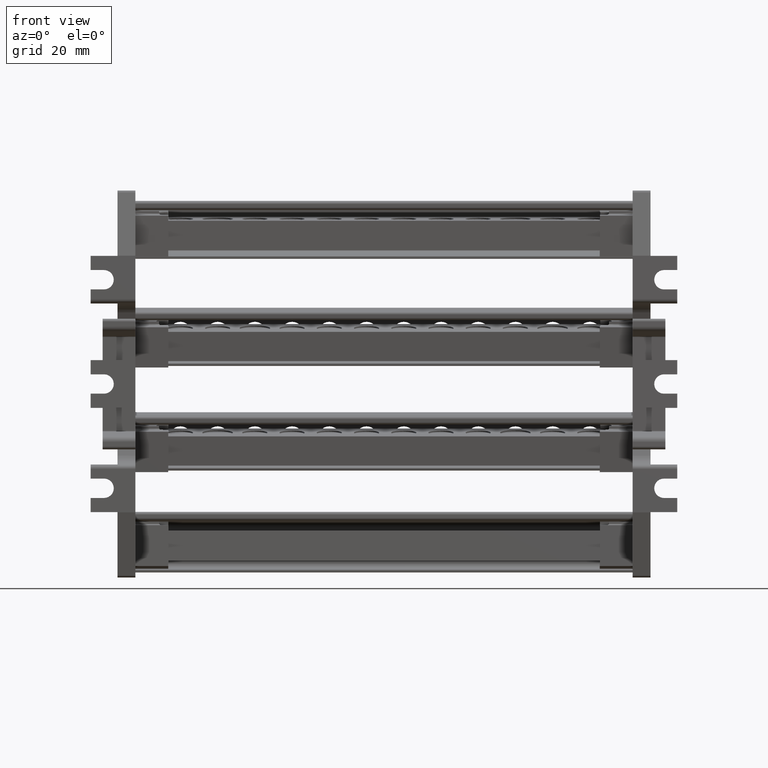
[diagram: clean part render]
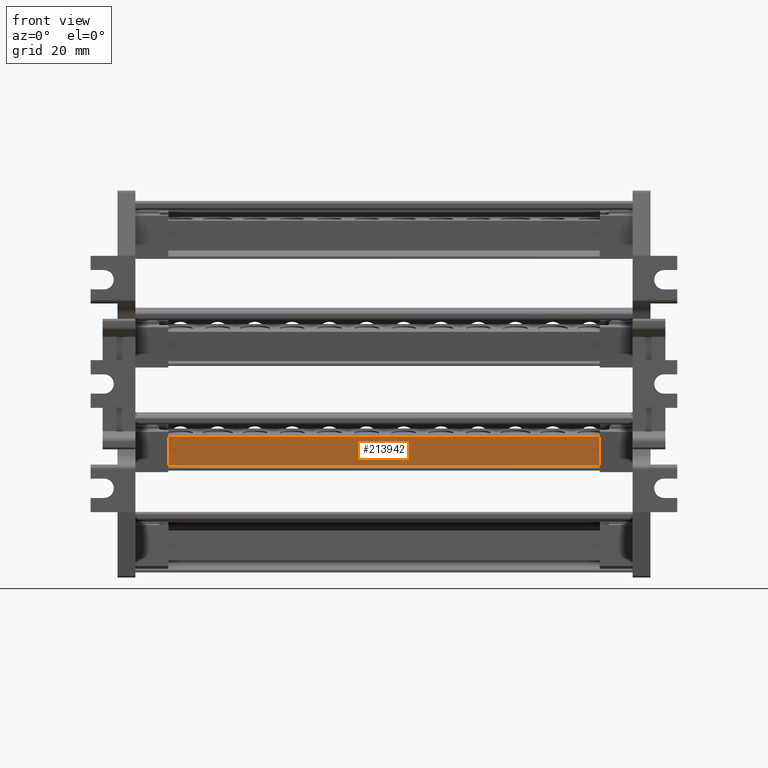
[diagram: same view with one face highlighted and labeled with its STEP entity id]
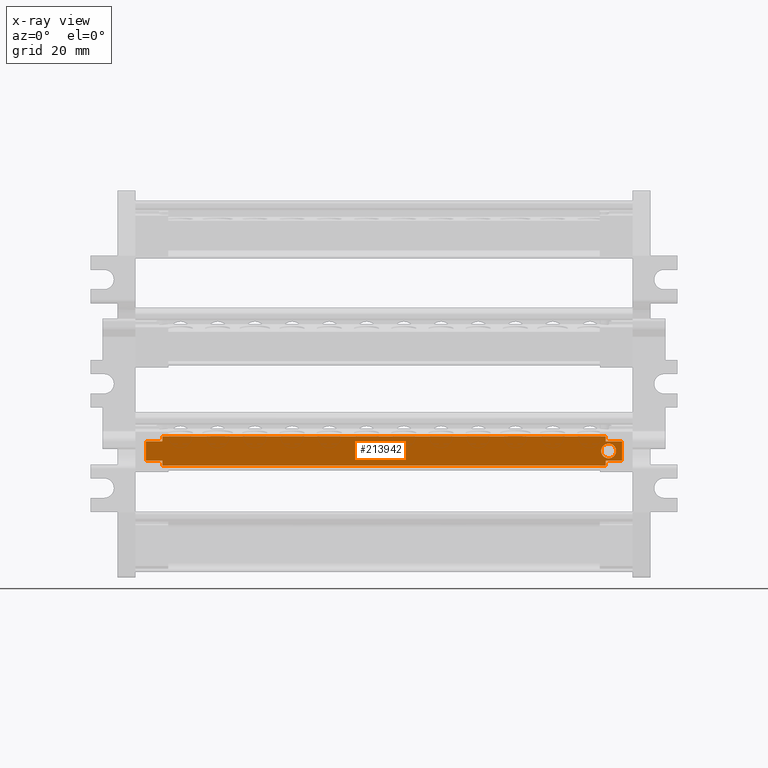
[diagram: x-ray of the same camera — body ghosted, the highlighted face saturated]
A machine part, front view. The second image highlights one B-rep face of the part: STEP entity #213942.
The next image is the same camera in x-ray: the body ghosted, the highlighted face saturated — about 0% of this face is hidden behind the body in this view.
In plain terms, the highlighted planar face has unit normal (-0, 0.9848, 0.1736).
Its self-contained STEP definition (entity closure, byte-faithful):
#4370 = LINE ( 'NONE', #4376, #158988 ) ;
#4376 = CARTESIAN_POINT ( 'NONE',  ( -1410.382428931376100, 714.2990447894144400, 2273.158254400498200 ) ) ;
#4488 = DIRECTION ( 'NONE',  ( -1.000000000000000000, -1.181062958423753300E-014, -2.082532654854678700E-015 ) ) ;
#4941 = LINE ( 'NONE', #4946, #158877 ) ;
#4946 = CARTESIAN_POINT ( 'NONE',  ( -1250.438428931344100, 712.8563735236994000, 2281.340049721443800 ) ) ;
#4952 = DIRECTION ( 'NONE',  ( -0.0000000000000000000, 0.1736481776669305000, -0.9848077530122081300 ) ) ;
#4961 = CARTESIAN_POINT ( 'NONE',  ( -1410.382428931376100, 713.1501840346495600, 2279.673767512267700 ) ) ;
#5029 = LINE ( 'NONE', #4961, #158990 ) ;
#5057 = DIRECTION ( 'NONE',  ( 1.000000000000000000, 1.181062958423753300E-014, 2.082532654854678700E-015 ) ) ;
#9163 = CARTESIAN_POINT ( 'NONE',  ( -1254.328059220478300, 713.3017929610317700, 2278.813950564395300 ) ) ;
#9164 = CARTESIAN_POINT ( 'NONE',  ( -1254.655179696627300, 713.2904939678666100, 2278.878030338913500 ) ) ;
#9165 = CARTESIAN_POINT ( 'NONE',  ( -1252.482428931376300, 713.7814406452910100, 2276.093733372833900 ) ) ;
#9166 = CARTESIAN_POINT ( 'NONE',  ( -1254.982428931376300, 713.2904939678666100, 2278.878030338913000 ) ) ;
#9187 = CARTESIAN_POINT ( 'NONE',  ( -1253.723381480448800, 714.1039429470533800, 2274.264731932061700 ) ) ;
#9189 = CARTESIAN_POINT ( 'NONE',  ( -1253.446062131439000, 714.0717661368415700, 2274.447215690831400 ) ) ;
#9195 = CARTESIAN_POINT ( 'NONE',  ( -1252.983261825380200, 713.9914017070710800, 2274.902985020333700 ) ) ;
#9197 = CARTESIAN_POINT ( 'NONE',  ( -1254.982428931376300, 714.1587348562012500, 2273.953991573851500 ) ) ;
#9198 = CARTESIAN_POINT ( 'NONE',  ( -1252.482428931376000, 713.6677881787768500, 2276.738288539930200 ) ) ;
#9201 = CARTESIAN_POINT ( 'NONE',  ( -1252.547497239705100, 713.8382445198517400, 2275.771582591753500 ) ) ;
#9202 = CARTESIAN_POINT ( 'NONE',  ( -1252.547497239705300, 713.6109843042160000, 2277.060439321011000 ) ) ;
#9207 = CARTESIAN_POINT ( 'NONE',  ( -1254.655179696627300, 714.1587348562011400, 2273.953991573851500 ) ) ;
#9210 = CARTESIAN_POINT ( 'NONE',  ( -1254.328059220478700, 714.1474358630357500, 2274.018071348369200 ) ) ;
#9213 = CARTESIAN_POINT ( 'NONE',  ( -1252.797962960490400, 713.9432457074835800, 2275.176091265299000 ) ) ;
#9214 = CARTESIAN_POINT ( 'NONE',  ( -1252.797962960490400, 713.5059831165842800, 2277.655930647466000 ) ) ;
#9215 = CARTESIAN_POINT ( 'NONE',  ( -1252.983261825380600, 713.4578271169967800, 2277.929036892430800 ) ) ;
#9216 = CARTESIAN_POINT ( 'NONE',  ( -1253.446062131439000, 713.3774626872261700, 2278.384806221934000 ) ) ;
#9217 = CARTESIAN_POINT ( 'NONE',  ( -1253.723381480449000, 713.3452858770141300, 2278.567289980702300 ) ) ;
#11740 = LINE ( 'NONE', #11760, #159340 ) ;
#11745 = DIRECTION ( 'NONE',  ( -0.0000000000000000000, -0.1736481776669314100, 0.9848077530122079100 ) ) ;
#11748 = DIRECTION ( 'NONE',  ( 0.0000000000000000000, -0.1736481776669305000, 0.9848077530122081300 ) ) ;
#11760 = CARTESIAN_POINT ( 'NONE',  ( -1255.938428931344300, 714.6145613225754700, 2271.368871222194200 ) ) ;
#11811 = LINE ( 'NONE', #11813, #159316 ) ;
#11813 = CARTESIAN_POINT ( 'NONE',  ( -1404.882428931376100, 712.8563735236975800, 2281.340049721443400 ) ) ;
#11894 = CARTESIAN_POINT ( 'NONE',  ( -1410.382428931376400, 714.5928553003672100, 2271.491972191321600 ) ) ;
#11954 = LINE ( 'NONE', #11894, #159396 ) ;
#11982 = DIRECTION ( 'NONE',  ( -1.000000000000000000, -1.514491706019197600E-016, 8.589109278308477900E-016 ) ) ;
#12350 = DIRECTION ( 'NONE',  ( -1.000000000000000000, -1.216784883144208100E-014, -3.703815455732279800E-016 ) ) ;
#12365 = CARTESIAN_POINT ( 'NONE',  ( -1404.882428931379500, 712.8563735236975800, 2281.340049721443400 ) ) ;
#12388 = LINE ( 'NONE', #12365, #159366 ) ;
#12394 = LINE ( 'NONE', #12407, #159301 ) ;
#12407 = CARTESIAN_POINT ( 'NONE',  ( -1385.382428931378400, 714.2990447894147800, 2273.158254400495000 ) ) ;
#12448 = DIRECTION ( 'NONE',  ( 0.0000000000000000000, -0.1736481776669305000, 0.9848077530122081300 ) ) ;
#13782 = LINE ( 'NONE', #13787, #159147 ) ;
#13784 = CARTESIAN_POINT ( 'NONE',  ( -1385.382428931378400, 713.1501840346488700, 2279.673767512269900 ) ) ;
#13787 = CARTESIAN_POINT ( 'NONE',  ( -1410.382428931376400, 712.8563735236994000, 2281.340049721443800 ) ) ;
#13827 = DIRECTION ( 'NONE',  ( -1.000000000000000000, -1.514491706019197600E-016, 8.589109278308477900E-016 ) ) ;
#13833 = LINE ( 'NONE', #13784, #159233 ) ;
#13837 = DIRECTION ( 'NONE',  ( 1.000000000000000000, 1.216784883144208100E-014, 3.703815455732279800E-016 ) ) ;
#13896 = CARTESIAN_POINT ( 'NONE',  ( -1255.938428931344300, 714.6145613225754700, 2271.368871222194200 ) ) ;
#13900 = DIRECTION ( 'NONE',  ( -0.0000000000000000000, -0.1736481776669314100, 0.9848077530122079100 ) ) ;
#13908 = LINE ( 'NONE', #13896, #159209 ) ;
#14101 = LINE ( 'NONE', #14105, #159335 ) ;
#14105 = CARTESIAN_POINT ( 'NONE',  ( -1410.382428931375900, 713.1501840346488700, 2279.673767512269900 ) ) ;
#14124 = DIRECTION ( 'NONE',  ( 0.0000000000000000000, 0.1736481776668329600, -0.9848077530122252300 ) ) ;
#29404 = AXIS2_PLACEMENT_3D ( 'NONE', #59130, #59128, #59126 ) ;
#30968 = B_SPLINE_CURVE_WITH_KNOTS ( 'NONE', 3,
 ( #206337, #206296, #206313, #206298, #206291, #206316, #206329, #206300, #206344, #206301, #206342, #206302, #206305, #206318, #206328, #206307, #206341, #206320 ),
 .UNSPECIFIED., .F., .F.,
 ( 4, 2, 2, 2, 2, 2, 2, 2, 4 ),
 ( 0.0000000000000000000, 0.1250000000000000000, 0.2500000000000000000, 0.3750000000000000000, 0.5000000000000000000, 0.6250000000000000000, 0.7500000000000000000, 0.8750000000000000000, 1.000000000000000000 ),
 .UNSPECIFIED. ) ;
#59126 = DIRECTION ( 'NONE',  ( 0.0000000000000000000, -0.1736481776669305000, 0.9848077530122081300 ) ) ;
#59128 = DIRECTION ( 'NONE',  ( -1.199282758295986500E-014, 0.9848077530122081300, 0.1736481776669305000 ) ) ;
#59130 = CARTESIAN_POINT ( 'NONE',  ( -1410.382428931376100, 712.8563735236974700, 2281.340049721443400 ) ) ;
#59136 = FACE_BOUND ( 'NONE', #134306, .T. ) ;
#59151 = FACE_OUTER_BOUND ( 'NONE', #134545, .T. ) ;
#59170 = PLANE ( 'NONE',  #29404 ) ;
#105721 = ORIENTED_EDGE ( 'NONE', *, *, #210615, .F. ) ;
#105763 = ORIENTED_EDGE ( 'NONE', *, *, #210648, .T. ) ;
#105766 = ORIENTED_EDGE ( 'NONE', *, *, #210725, .T. ) ;
#105823 = ORIENTED_EDGE ( 'NONE', *, *, #210201, .F. ) ;
#105856 = ORIENTED_EDGE ( 'NONE', *, *, #210610, .T. ) ;
#105865 = ORIENTED_EDGE ( 'NONE', *, *, #210733, .F. ) ;
#105901 = ORIENTED_EDGE ( 'NONE', *, *, #210224, .F. ) ;
#105919 = ORIENTED_EDGE ( 'NONE', *, *, #210853, .F. ) ;
#105932 = ORIENTED_EDGE ( 'NONE', *, *, #210131, .F. ) ;
#105986 = ORIENTED_EDGE ( 'NONE', *, *, #210712, .T. ) ;
#106004 = ORIENTED_EDGE ( 'NONE', *, *, #210857, .F. ) ;
#106018 = ORIENTED_EDGE ( 'NONE', *, *, #210762, .F. ) ;
#106084 = ORIENTED_EDGE ( 'NONE', *, *, #128323, .F. ) ;
#106128 = ORIENTED_EDGE ( 'NONE', *, *, #140151, .F. ) ;
#114169 = VERTEX_POINT ( 'NONE', #172633 ) ;
#114325 = VERTEX_POINT ( 'NONE', #172842 ) ;
#114419 = VERTEX_POINT ( 'NONE', #172928 ) ;
#114443 = VERTEX_POINT ( 'NONE', #173000 ) ;
#114472 = VERTEX_POINT ( 'NONE', #173044 ) ;
#114480 = VERTEX_POINT ( 'NONE', #173052 ) ;
#114745 = VERTEX_POINT ( 'NONE', #173453 ) ;
#114751 = VERTEX_POINT ( 'NONE', #173386 ) ;
#114768 = VERTEX_POINT ( 'NONE', #173396 ) ;
#114780 = VERTEX_POINT ( 'NONE', #173392 ) ;
#114802 = VERTEX_POINT ( 'NONE', #173442 ) ;
#114809 = VERTEX_POINT ( 'NONE', #173367 ) ;
#128323 = EDGE_CURVE ( 'NONE', #139902, #139936, #129435, .T. ) ;
#129435 = B_SPLINE_CURVE_WITH_KNOTS ( 'NONE', 3,
 ( #9197, #9207, #9210, #9187, #9189, #9195, #9213, #9201, #9165, #9198, #9202, #9214, #9215, #9216, #9217, #9163, #9164, #9166 ),
 .UNSPECIFIED., .F., .F.,
 ( 4, 2, 2, 2, 2, 2, 2, 2, 4 ),
 ( 0.0000000000000000000, 0.1250000000000000000, 0.2500000000000000000, 0.3750000000000000000, 0.5000000000000000000, 0.6250000000000000000, 0.7500000000000000000, 0.8750000000000000000, 1.000000000000000000 ),
 .UNSPECIFIED. ) ;
#134306 = EDGE_LOOP ( 'NONE', ( #106128, #106084 ) ) ;
#134545 = EDGE_LOOP ( 'NONE', ( #105721, #105986, #106004, #105919, #106018, #105766, #105932, #105901, #105823, #105763, #105856, #105865 ) ) ;
#139902 = VERTEX_POINT ( 'NONE', #203605 ) ;
#139936 = VERTEX_POINT ( 'NONE', #203908 ) ;
#140151 = EDGE_CURVE ( 'NONE', #139936, #139902, #30968, .T. ) ;
#158877 = VECTOR ( 'NONE', #4952, 999.9999999999998900 ) ;
#158988 = VECTOR ( 'NONE', #4488, 1000.000000000000000 ) ;
#158990 = VECTOR ( 'NONE', #5057, 1000.000000000000000 ) ;
#159147 = VECTOR ( 'NONE', #13827, 1000.000000000000000 ) ;
#159209 = VECTOR ( 'NONE', #13900, 1000.000000000000100 ) ;
#159233 = VECTOR ( 'NONE', #13837, 1000.000000000000000 ) ;
#159301 = VECTOR ( 'NONE', #12350, 1000.000000000000000 ) ;
#159316 = VECTOR ( 'NONE', #11748, 999.9999999999998900 ) ;
#159335 = VECTOR ( 'NONE', #14124, 1000.000000000000100 ) ;
#159340 = VECTOR ( 'NONE', #11745, 1000.000000000000100 ) ;
#159366 = VECTOR ( 'NONE', #12448, 999.9999999999998900 ) ;
#159396 = VECTOR ( 'NONE', #11982, 1000.000000000000000 ) ;
#172633 = CARTESIAN_POINT ( 'NONE',  ( -1255.938428931325500, 712.8563735236990600, 2281.340049721443400 ) ) ;
#172842 = CARTESIAN_POINT ( 'NONE',  ( -1255.938428931344300, 714.5928553003675500, 2271.491972191321600 ) ) ;
#172928 = CARTESIAN_POINT ( 'NONE',  ( -1250.438428931344100, 714.2990447894155700, 2273.158254400498700 ) ) ;
#173000 = CARTESIAN_POINT ( 'NONE',  ( -1255.938428931339600, 713.1501840346501200, 2279.673767512268100 ) ) ;
#173044 = CARTESIAN_POINT ( 'NONE',  ( -1255.938428931343900, 714.2990447894151200, 2273.158254400498200 ) ) ;
#173052 = CARTESIAN_POINT ( 'NONE',  ( -1250.438428931344100, 713.1501840346510300, 2279.673767512268100 ) ) ;
#173367 = CARTESIAN_POINT ( 'NONE',  ( -1410.382428931375900, 714.2990447894142100, 2273.158254400495000 ) ) ;
#173386 = CARTESIAN_POINT ( 'NONE',  ( -1404.882428931376100, 712.8563735236979300, 2281.340049721443400 ) ) ;
#173392 = CARTESIAN_POINT ( 'NONE',  ( -1410.382428931375900, 713.1501840346487600, 2279.673767512269900 ) ) ;
#173396 = CARTESIAN_POINT ( 'NONE',  ( -1404.882428931377000, 714.2990447894146700, 2273.158254400495000 ) ) ;
#173442 = CARTESIAN_POINT ( 'NONE',  ( -1404.882428931379500, 714.5928553003668600, 2271.491972191322000 ) ) ;
#173453 = CARTESIAN_POINT ( 'NONE',  ( -1404.882428931376100, 713.1501840346488700, 2279.673767512269900 ) ) ;
#203605 = CARTESIAN_POINT ( 'NONE',  ( -1254.982428931376300, 714.1587348562012500, 2273.953991573851500 ) ) ;
#203908 = CARTESIAN_POINT ( 'NONE',  ( -1254.982428931376300, 713.2904939678666100, 2278.878030338913000 ) ) ;
#206291 = CARTESIAN_POINT ( 'NONE',  ( -1256.518795731313500, 713.3774626872260600, 2278.384806221934000 ) ) ;
#206296 = CARTESIAN_POINT ( 'NONE',  ( -1255.309678166124500, 713.2904939678665000, 2278.878030338913000 ) ) ;
#206298 = CARTESIAN_POINT ( 'NONE',  ( -1256.241476382303300, 713.3452858770140200, 2278.567289980700900 ) ) ;
#206300 = CARTESIAN_POINT ( 'NONE',  ( -1257.417360623047000, 713.6109843042160000, 2277.060439321011500 ) ) ;
#206301 = CARTESIAN_POINT ( 'NONE',  ( -1257.482428931376300, 713.7814406452909000, 2276.093733372833400 ) ) ;
#206302 = CARTESIAN_POINT ( 'NONE',  ( -1257.166894902262100, 713.9432457074835800, 2275.176091265298500 ) ) ;
#206305 = CARTESIAN_POINT ( 'NONE',  ( -1256.981596037372100, 713.9914017070709600, 2274.902985020333300 ) ) ;
#206307 = CARTESIAN_POINT ( 'NONE',  ( -1255.636798642274700, 714.1474358630359800, 2274.018071348369200 ) ) ;
#206313 = CARTESIAN_POINT ( 'NONE',  ( -1255.636798642274900, 713.3017929610317700, 2278.813950564395800 ) ) ;
#206316 = CARTESIAN_POINT ( 'NONE',  ( -1256.981596037371900, 713.4578271169967800, 2277.929036892430800 ) ) ;
#206318 = CARTESIAN_POINT ( 'NONE',  ( -1256.518795731313300, 714.0717661368416900, 2274.447215690831400 ) ) ;
#206320 = CARTESIAN_POINT ( 'NONE',  ( -1254.982428931376300, 714.1587348562012500, 2273.953991573851500 ) ) ;
#206328 = CARTESIAN_POINT ( 'NONE',  ( -1256.241476382303500, 714.1039429470536100, 2274.264731932063100 ) ) ;
#206329 = CARTESIAN_POINT ( 'NONE',  ( -1257.166894902262100, 713.5059831165840500, 2277.655930647466400 ) ) ;
#206337 = CARTESIAN_POINT ( 'NONE',  ( -1254.982428931376300, 713.2904939678666100, 2278.878030338913000 ) ) ;
#206341 = CARTESIAN_POINT ( 'NONE',  ( -1255.309678166124700, 714.1587348562012500, 2273.953991573851900 ) ) ;
#206342 = CARTESIAN_POINT ( 'NONE',  ( -1257.417360623047200, 713.8382445198516300, 2275.771582591753900 ) ) ;
#206344 = CARTESIAN_POINT ( 'NONE',  ( -1257.482428931376500, 713.6677881787767300, 2276.738288539930600 ) ) ;
#210131 = EDGE_CURVE ( 'NONE', #114419, #114472, #4370, .T. ) ;
#210201 = EDGE_CURVE ( 'NONE', #114443, #114480, #5029, .T. ) ;
#210224 = EDGE_CURVE ( 'NONE', #114480, #114419, #4941, .T. ) ;
#210610 = EDGE_CURVE ( 'NONE', #114169, #114751, #13782, .T. ) ;
#210615 = EDGE_CURVE ( 'NONE', #114780, #114745, #13833, .T. ) ;
#210648 = EDGE_CURVE ( 'NONE', #114443, #114169, #13908, .T. ) ;
#210712 = EDGE_CURVE ( 'NONE', #114780, #114809, #14101, .T. ) ;
#210725 = EDGE_CURVE ( 'NONE', #114325, #114472, #11740, .T. ) ;
#210733 = EDGE_CURVE ( 'NONE', #114745, #114751, #11811, .T. ) ;
#210762 = EDGE_CURVE ( 'NONE', #114325, #114802, #11954, .T. ) ;
#210853 = EDGE_CURVE ( 'NONE', #114802, #114768, #12388, .T. ) ;
#210857 = EDGE_CURVE ( 'NONE', #114768, #114809, #12394, .T. ) ;
#213942 = ADVANCED_FACE ( 'NONE', ( #59151, #59136 ), #59170, .F. ) ;